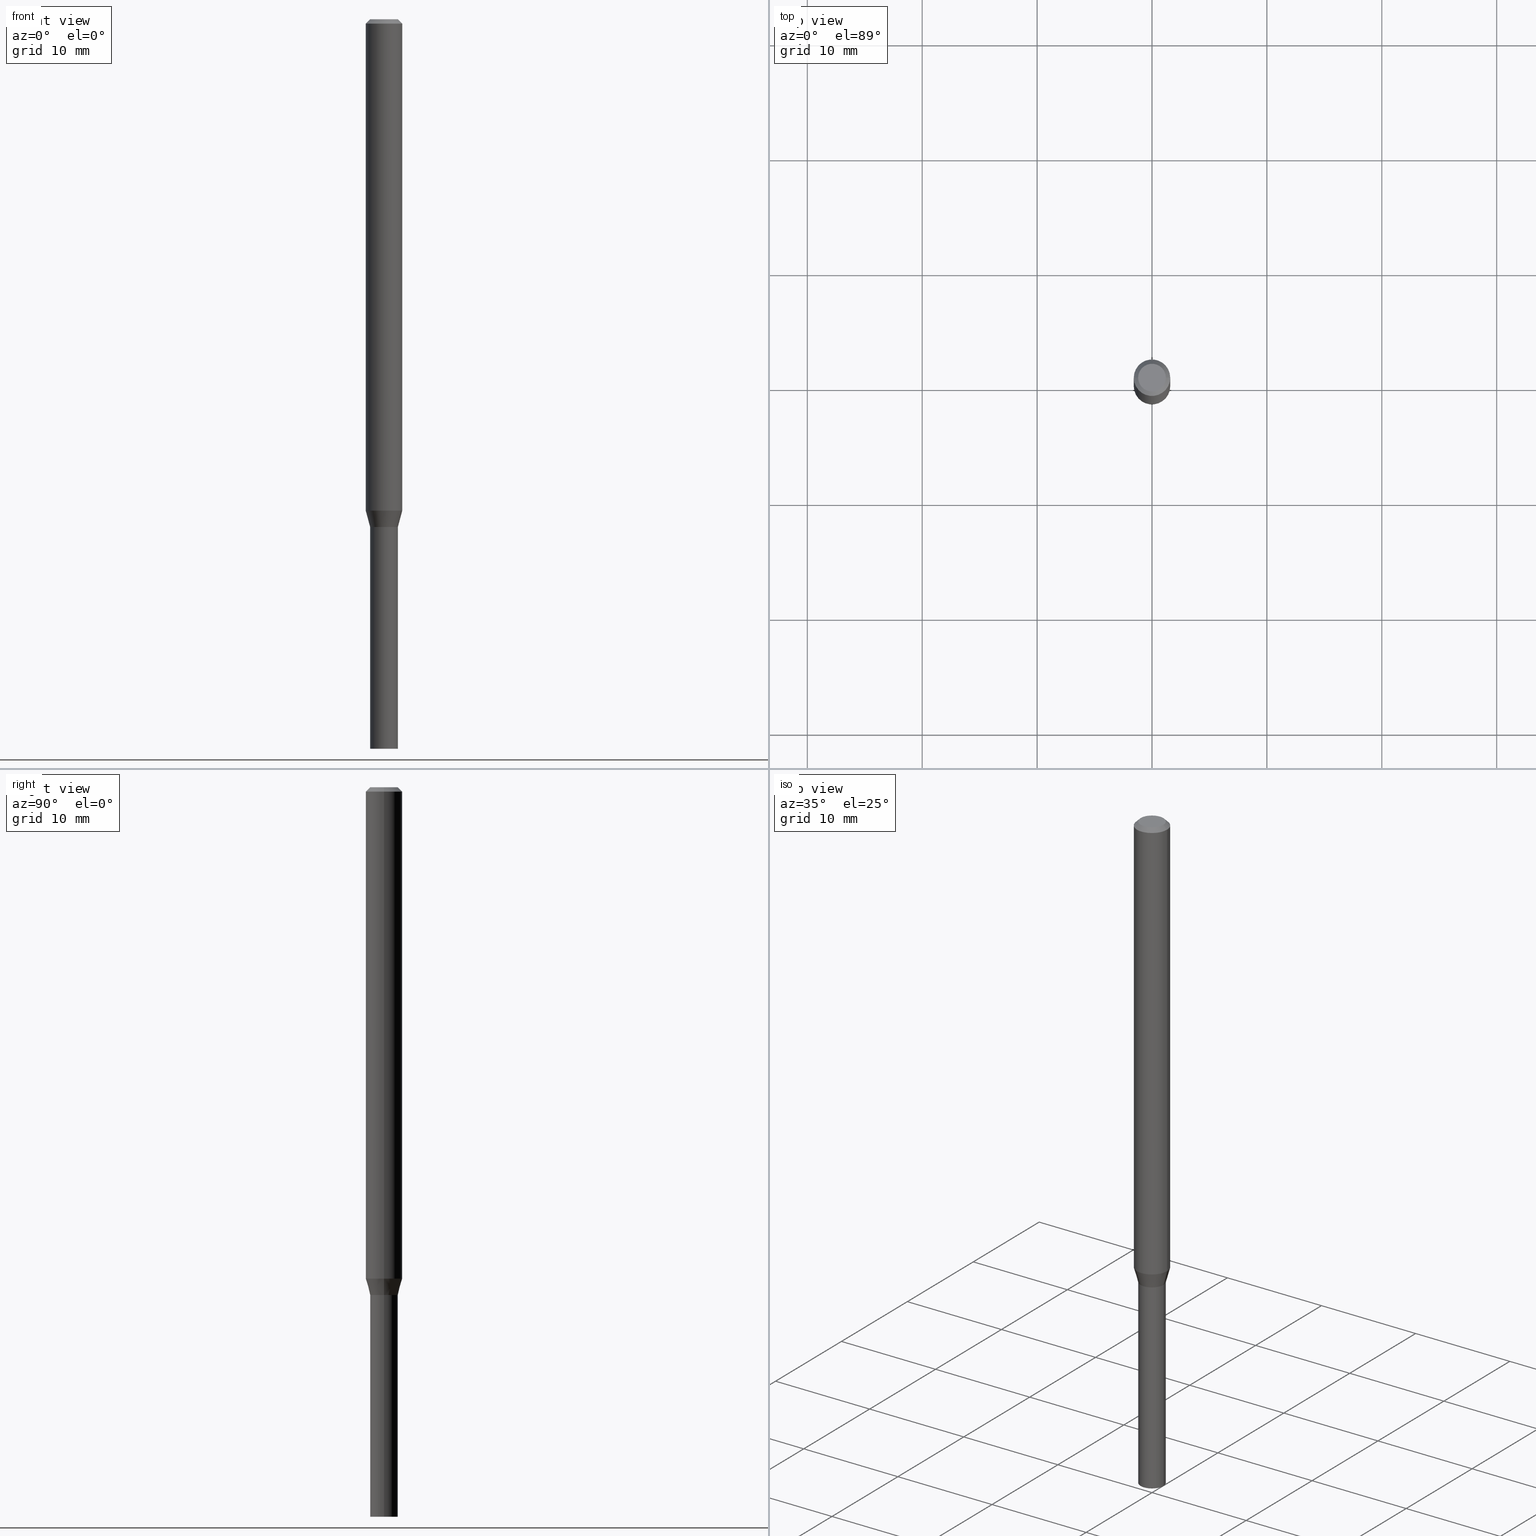
[diagram: canonical four-view strip — front | top / right | iso, engineering-drawing reading convention]
A machine part, canonical four-view strip (front | top / right | iso — engineering-drawing reading convention). The complete STEP part file that produces these views, byte-faithful:
ISO-10303-21;
HEADER;
FILE_DESCRIPTION (( 'STEP AP203' ),
    '1' );
FILE_NAME ('01277.STEP',
    '2024-03-20T00:54:45',
    ( '' ),
    ( '' ),
    'SwSTEP 2.0',
    'SolidWorks 2023',
    '' );
FILE_SCHEMA (( 'CONFIG_CONTROL_DESIGN' ));
ENDSEC;

DATA;
#1 = CARTESIAN_POINT ( 'NONE',  ( 0.04749999999999999362, -4.035134999187577637E-16, 5.611396763916933883E-17 ) ) ;
#2 = EDGE_LOOP ( 'NONE', ( #437, #202 ) ) ;
#3 = SHAPE_DEFINITION_REPRESENTATION ( #237, #136 ) ;
#4 = EDGE_CURVE ( 'NONE', #295, #342, #119, .T. ) ;
#5 = CARTESIAN_POINT ( 'NONE',  ( 0.000000000000000000, 0.000000000000000000, 0.000000000000000000 ) ) ;
#6 = ORIENTED_EDGE ( 'NONE', *, *, #35, .F. ) ;
#7 = CARTESIAN_POINT ( 'NONE',  ( 3.668203209277705088E-31, -5.237222008264718399E-17, -0.01499999999999999944 ) ) ;
#8 = ORIENTED_EDGE ( 'NONE', *, *, #217, .T. ) ;
#9 = CONICAL_SURFACE ( 'NONE', #87, 0.04699999999999999317, 0.7853981633974739252 ) ;
#10 = CARTESIAN_POINT ( 'NONE',  ( 4.253892988359045819E-29, -6.073431788917653096E-15, -1.739500000000000490 ) ) ;
#11 = PERSON ( 'UNSPECIFIED', 'UNSPECIFIED', 'UNSPECIFIED', ('UNSPECIFIED'), ('UNSPECIFIED'), ('UNSPECIFIED') ) ;
#12 = APPROVAL ( #216, 'UNSPECIFIED' ) ;
#13 = DIRECTION ( 'NONE',  ( 1.000000000000000000, -6.982962677686272233E-15, 0.000000000000000000 ) ) ;
#14 = EDGE_CURVE ( 'NONE', #300, #344, #377, .T. ) ;
#15 = ORIENTED_EDGE ( 'NONE', *, *, #217, .F. ) ;
#16 = DIRECTION ( 'NONE',  ( 1.000000000000000000, -6.982962677686272233E-15, 0.000000000000000000 ) ) ;
#17 = DIRECTION ( 'NONE',  ( 1.000000000000000000, -6.982962677686283277E-15, 0.000000000000000000 ) ) ;
#18 = EDGE_CURVE ( 'NONE', #434, #187, #204, .T. ) ;
#19 = ORIENTED_EDGE ( 'NONE', *, *, #91, .F. ) ;
#20 = ORIENTED_EDGE ( 'NONE', *, *, #443, .F. ) ;
#21 = CLOSED_SHELL ( 'NONE', ( #58, #461, #29, #305 ) ) ;
#22 = AXIS2_PLACEMENT_3D ( 'NONE', #92, #83, #264 ) ;
#23 = ORIENTED_EDGE ( 'NONE', *, *, #122, .F. ) ;
#24 = PRODUCT_RELATED_PRODUCT_CATEGORY ( 'detail', '', ( #197 ) ) ;
#25 = DIRECTION ( 'NONE',  ( 1.000000000000000000, -6.982962677686273021E-15, 0.000000000000000000 ) ) ;
#26 = CARTESIAN_POINT ( 'NONE',  ( 3.668203209277705088E-31, -5.237222008264718399E-17, -0.01499999999999999944 ) ) ;
#27 = DIRECTION ( 'NONE',  ( 1.000000000000000000, -6.982962677686267499E-15, 4.876176775795935793E-29 ) ) ;
#28 = AXIS2_PLACEMENT_3D ( 'NONE', #302, #73, #189 ) ;
#29 = ADVANCED_FACE ( 'NONE', ( #252 ), #211, .T. ) ;
#30 = CARTESIAN_POINT ( 'NONE',  ( -0.04749999999999964667, -5.737669730101027895E-15, -1.739999999999999991 ) ) ;
#31 = DATE_AND_TIME ( #134, #153 ) ;
#32 = FACE_OUTER_BOUND ( 'NONE', #124, .T. ) ;
#33 = APPROVAL_ROLE ( '' ) ;
#34 = DIRECTION ( 'NONE',  ( 2.445468806185136597E-29, -3.491481338843145583E-15, -1.000000000000000000 ) ) ;
#35 = EDGE_CURVE ( 'NONE', #187, #275, #455, .T. ) ;
#36 = EDGE_LOOP ( 'NONE', ( #78, #328, #48, #6 ) ) ;
#37 = VECTOR ( 'NONE', #117, 39.37007874015748143 ) ;
#38 = PERSON_AND_ORGANIZATION_ROLE ( 'creator' ) ;
#39 = DIRECTION ( 'NONE',  ( 1.000000000000000000, -6.982962677686273021E-15, 0.000000000000000000 ) ) ;
#40 = EDGE_LOOP ( 'NONE', ( #42, #181, #151, #155 ) ) ;
#41 = DIRECTION ( 'NONE',  ( -2.445468806185136877E-29, 3.491481338843145188E-15, 1.000000000000000000 ) ) ;
#42 = ORIENTED_EDGE ( 'NONE', *, *, #407, .F. ) ;
#43 = UNCERTAINTY_MEASURE_WITH_UNIT (LENGTH_MEASURE( 1.000000000000000082E-05 ), #231, 'distance_accuracy_value', 'NONE');
#44 = DIRECTION ( 'NONE',  ( 2.438088387897960049E-29, -3.491481338843145188E-15, -1.000000000000000000 ) ) ;
#45 = AXIS2_PLACEMENT_3D ( 'NONE', #376, #336, #120 ) ;
#46 = EDGE_CURVE ( 'NONE', #80, #112, #307, .T. ) ;
#47 = CARTESIAN_POINT ( 'NONE',  ( -0.04749999999999999362, -7.064432638861422672E-15, -2.500000000000000000 ) ) ;
#48 = ORIENTED_EDGE ( 'NONE', *, *, #270, .T. ) ;
#49 = DIRECTION ( 'NONE',  ( 1.000000000000000000, -6.982962677686272233E-15, 0.000000000000000000 ) ) ;
#50 = PRODUCT_DEFINITION_FORMATION_WITH_SPECIFIED_SOURCE ( 'ANY', '', #197, .NOT_KNOWN. ) ;
#51 = CC_DESIGN_DATE_AND_TIME_ASSIGNMENT ( #392, #167, ( #188 ) ) ;
#52 = ORIENTED_EDGE ( 'NONE', *, *, #311, .T. ) ;
#53 = DIRECTION ( 'NONE',  ( 1.000000000000000000, -6.982962677686262766E-15, 0.000000000000000000 ) ) ;
#54 = VERTEX_POINT ( 'NONE', #456 ) ;
#55 = EDGE_CURVE ( 'NONE', #342, #295, #94, .T. ) ;
#56 = FACE_OUTER_BOUND ( 'NONE', #142, .T. ) ;
#57 = AXIS2_PLACEMENT_3D ( 'NONE', #395, #221, #245 ) ;
#58 = ADVANCED_FACE ( 'NONE', ( #135 ), #96, .T. ) ;
#59 = LOCAL_TIME ( 20, 54, 45.00000000000000000, #460 ) ;
#60 = CARTESIAN_POINT ( 'NONE',  ( 6.113672015462842613E-29, -8.728703347107864943E-15, -2.500000000000000000 ) ) ;
#61 = CARTESIAN_POINT ( 'NONE',  ( 4.253892988359045819E-29, -6.073431788917653096E-15, -1.739500000000000490 ) ) ;
#62 = FACE_OUTER_BOUND ( 'NONE', #40, .T. ) ;
#63 = CARTESIAN_POINT ( 'NONE',  ( 0.000000000000000000, 0.000000000000000000, 0.000000000000000000 ) ) ;
#64 = DATE_AND_TIME ( #143, #88 ) ;
#65 = CARTESIAN_POINT ( 'NONE',  ( 3.668203209277705088E-31, -5.237222008264718399E-17, -0.01499999999999999944 ) ) ;
#66 = AXIS2_PLACEMENT_3D ( 'NONE', #405, #317, #195 ) ;
#67 = PERSON_AND_ORGANIZATION_ROLE ( 'classification_officer' ) ;
#68 = DIRECTION ( 'NONE',  ( -2.445468806185136877E-29, 3.491481338843145188E-15, 1.000000000000000000 ) ) ;
#69 = COORDINATED_UNIVERSAL_TIME_OFFSET ( 5, 0, .BEHIND. ) ;
#70 = DIRECTION ( 'NONE',  ( -2.438088387897960049E-29, 3.491481338843145188E-15, 1.000000000000000000 ) ) ;
#71 = ORIENTED_EDGE ( 'NONE', *, *, #156, .T. ) ;
#72 = APPROVAL_ROLE ( '' ) ;
#73 = DIRECTION ( 'NONE',  ( -2.445468806185136597E-29, 3.491481338843145583E-15, 1.000000000000000000 ) ) ;
#74 = AXIS2_PLACEMENT_3D ( 'NONE', #390, #276, #93 ) ;
#75 = LINE ( 'NONE', #433, #200 ) ;
#76 = ORIENTED_EDGE ( 'NONE', *, *, #4, .T. ) ;
#77 = FACE_OUTER_BOUND ( 'NONE', #2, .T. ) ;
#78 = ORIENTED_EDGE ( 'NONE', *, *, #163, .F. ) ;
#79 = DIRECTION ( 'NONE',  ( -2.445468806185136597E-29, 3.491481338843145583E-15, 1.000000000000000000 ) ) ;
#80 = VERTEX_POINT ( 'NONE', #282 ) ;
#81 = VECTOR ( 'NONE', #289, 39.37007874015748143 ) ;
#82 = ORIENTED_EDGE ( 'NONE', *, *, #284, .F. ) ;
#83 = DIRECTION ( 'NONE',  ( -2.445468806185136597E-29, 3.491481338843145583E-15, 1.000000000000000000 ) ) ;
#84 = ADVANCED_FACE ( 'NONE', ( #246 ), #131, .T. ) ;
#85 = ORIENTED_EDGE ( 'NONE', *, *, #18, .F. ) ;
#86 = ORIENTED_EDGE ( 'NONE', *, *, #55, .F. ) ;
#87 = AXIS2_PLACEMENT_3D ( 'NONE', #414, #420, #13 ) ;
#88 = LOCAL_TIME ( 20, 54, 45.00000000000000000, #429 ) ;
#89 = ORIENTED_EDGE ( 'NONE', *, *, #297, .F. ) ;
#90 = ORIENTED_EDGE ( 'NONE', *, *, #55, .T. ) ;
#91 = EDGE_CURVE ( 'NONE', #310, #54, #278, .T. ) ;
#92 = CARTESIAN_POINT ( 'NONE',  ( 4.255115722762138060E-29, -6.075177529587073811E-15, -1.739999999999999991 ) ) ;
#93 = DIRECTION ( 'NONE',  ( 1.000000000000000000, -6.982962677686266711E-15, 4.876176775795935793E-29 ) ) ;
#94 = CIRCLE ( 'NONE', #427, 0.04749999999999999362 ) ;
#95 = CIRCLE ( 'NONE', #28, 0.04749999999999999362 ) ;
#96 = CYLINDRICAL_SURFACE ( 'NONE', #338, 0.04749999999999999362 ) ;
#97 = CARTESIAN_POINT ( 'NONE',  ( 0.000000000000000000, 0.000000000000000000, 0.000000000000000000 ) ) ;
#98 = ADVANCED_FACE ( 'NONE', ( #32 ), #152, .T. ) ;
#99 = DIRECTION ( 'NONE',  ( -2.445468806185136597E-29, 3.491481338843145583E-15, 1.000000000000000000 ) ) ;
#100 = APPROVAL_STATUS ( 'not_yet_approved' ) ;
#101 = DIRECTION ( 'NONE',  ( -0.7071067811865656694, 7.493145998870420424E-15, 0.7071067811865294761 ) ) ;
#102 = PERSON_AND_ORGANIZATION_ROLE ( 'design_owner' ) ;
#103 = CYLINDRICAL_SURFACE ( 'NONE', #74, 0.06250000000000000000 ) ;
#104 = CONICAL_SURFACE ( 'NONE', #428, 0.06250000000000000000, 0.7853981633974465026 ) ;
#105 = DATE_AND_TIME ( #283, #380 ) ;
#106 = PLANE ( 'NONE',  #465 ) ;
#107 = APPROVAL ( #172, 'UNSPECIFIED' ) ;
#108 = APPROVAL_ROLE ( '' ) ;
#109 = CARTESIAN_POINT ( 'NONE',  ( 3.668203209277705088E-31, -5.237222008264718399E-17, -0.01499999999999999944 ) ) ;
#110 = MECHANICAL_CONTEXT ( 'NONE', #128, 'mechanical' ) ;
#111 = LINE ( 'NONE', #364, #257 ) ;
#112 = VERTEX_POINT ( 'NONE', #170 ) ;
#113 = VECTOR ( 'NONE', #41, 39.37007874015748143 ) ;
#114 = CARTESIAN_POINT ( 'NONE',  ( -0.04749999999999999362, 3.375077994860475429E-16, -2.336494167871079910E-30 ) ) ;
#115 = CARTESIAN_POINT ( 'NONE',  ( 0.04699999999999999317, -6.403376775438328315E-15, -1.739999999999999991 ) ) ;
#116 = EDGE_LOOP ( 'NONE', ( #52, #337 ) ) ;
#117 = DIRECTION ( 'NONE',  ( -2.445468806185136877E-29, 3.491481338843145188E-15, 1.000000000000000000 ) ) ;
#118 = ORIENTED_EDGE ( 'NONE', *, *, #185, .F. ) ;
#119 = CIRCLE ( 'NONE', #190, 0.04749999999999999362 ) ;
#120 = DIRECTION ( 'NONE',  ( 1.000000000000000000, -6.982962677686273021E-15, 0.000000000000000000 ) ) ;
#121 = VERTEX_POINT ( 'NONE', #218 ) ;
#122 = EDGE_CURVE ( 'NONE', #54, #196, #386, .T. ) ;
#123 = DIRECTION ( 'NONE',  ( 1.000000000000000000, -6.982962677686265922E-15, 4.876176775795935793E-29 ) ) ;
#124 = EDGE_LOOP ( 'NONE', ( #396, #365, #191, #15 ) ) ;
#125 = ORIENTED_EDGE ( 'NONE', *, *, #203, .F. ) ;
#126 = AXIS2_PLACEMENT_3D ( 'NONE', #351, #99, #244 ) ;
#127 = EDGE_LOOP ( 'NONE', ( #222, #449, #410, #314 ) ) ;
#128 = APPLICATION_CONTEXT ( 'configuration controlled 3d designs of mechanical parts and assemblies' ) ;
#129 =( NAMED_UNIT ( * ) SI_UNIT ( $, .STERADIAN. ) SOLID_ANGLE_UNIT ( ) );
#130 = CARTESIAN_POINT ( 'NONE',  ( 0.04699999999999999317, -6.403376775438328315E-15, -1.739999999999999991 ) ) ;
#131 = CONICAL_SURFACE ( 'NONE', #265, 0.06250000000000000000, 0.7853981633974465026 ) ;
#132 = VECTOR ( 'NONE', #68, 39.37007874015748143 ) ;
#133 = DIRECTION ( 'NONE',  ( 1.000000000000000000, -6.982962677686266711E-15, 0.000000000000000000 ) ) ;
#134 = CALENDAR_DATE ( 2024, 19, 3 ) ;
#135 = FACE_OUTER_BOUND ( 'NONE', #160, .T. ) ;
#136 = ADVANCED_BREP_SHAPE_REPRESENTATION ( '01277', ( #286, #432, #214 ), #279 ) ;
#137 = DIRECTION ( 'NONE',  ( -2.445468806185136597E-29, 3.491481338843145583E-15, 1.000000000000000000 ) ) ;
#138 = COORDINATED_UNIVERSAL_TIME_OFFSET ( 5, 0, .BEHIND. ) ;
#139 = VECTOR ( 'NONE', #292, 39.37007874015748143 ) ;
#140 = CARTESIAN_POINT ( 'NONE',  ( 0.000000000000000000, 0.000000000000000000, 0.000000000000000000 ) ) ;
#141 = FACE_OUTER_BOUND ( 'NONE', #116, .T. ) ;
#142 = EDGE_LOOP ( 'NONE', ( #255, #313, #409, #125 ) ) ;
#143 = CALENDAR_DATE ( 2024, 19, 3 ) ;
#144 = CARTESIAN_POINT ( 'NONE',  ( 0.06250000000000000000, -4.364351673553916694E-16, 3.047610484872459871E-30 ) ) ;
#145 = DIRECTION ( 'NONE',  ( -2.445468806185136597E-29, 3.491481338843145583E-15, 1.000000000000000000 ) ) ;
#146 = AXIS2_PLACEMENT_3D ( 'NONE', #384, #209, #49 ) ;
#147 = DIRECTION ( 'NONE',  ( 1.000000000000000000, -6.982962677686267499E-15, 4.876176775795935793E-29 ) ) ;
#148 = APPLICATION_CONTEXT ( 'configuration controlled 3d designs of mechanical parts and assemblies' ) ;
#149 = DIRECTION ( 'NONE',  ( 1.000000000000000000, -6.982962677686267499E-15, 4.876176775795935793E-29 ) ) ;
#150 = LINE ( 'NONE', #306, #333 ) ;
#151 = ORIENTED_EDGE ( 'NONE', *, *, #332, .T. ) ;
#152 = CONICAL_SURFACE ( 'NONE', #126, 0.04749999999999964667, 0.2617993877991492968 ) ;
#153 = LOCAL_TIME ( 20, 54, 45.00000000000000000, #69 ) ;
#154 = ORIENTED_EDGE ( 'NONE', *, *, #4, .F. ) ;
#155 = ORIENTED_EDGE ( 'NONE', *, *, #156, .F. ) ;
#156 = EDGE_CURVE ( 'NONE', #259, #121, #348, .T. ) ;
#157 = ORIENTED_EDGE ( 'NONE', *, *, #442, .F. ) ;
#158 = AXIS2_PLACEMENT_3D ( 'NONE', #439, #326, #39 ) ;
#159 = AXIS2_PLACEMENT_3D ( 'NONE', #423, #137, #415 ) ;
#160 = EDGE_LOOP ( 'NONE', ( #76, #271, #220, #157 ) ) ;
#161 =( NAMED_UNIT ( * ) PLANE_ANGLE_UNIT ( ) SI_UNIT ( $, .RADIAN. ) );
#162 = CARTESIAN_POINT ( 'NONE',  ( -0.04749999999999964667, -5.735923989431608758E-15, -1.739500000000000490 ) ) ;
#163 = EDGE_CURVE ( 'NONE', #344, #187, #248, .T. ) ;
#164 = CARTESIAN_POINT ( 'NONE',  ( 0.000000000000000000, 0.000000000000000000, 0.000000000000000000 ) ) ;
#165 = FACE_OUTER_BOUND ( 'NONE', #127, .T. ) ;
#166 = CC_DESIGN_PERSON_AND_ORGANIZATION_ASSIGNMENT ( #256, #247, ( #50 ) ) ;
#167 = DATE_TIME_ROLE ( 'creation_date' ) ;
#168 = CLOSED_SHELL ( 'NONE', ( #419, #417, #84, #174, #98, #385, #234, #369, #374, #360, #393, #253 ) ) ;
#169 = AXIS2_PLACEMENT_3D ( 'NONE', #5, #358, #183 ) ;
#170 = CARTESIAN_POINT ( 'NONE',  ( -0.04749999999999999362, -7.064432638861422672E-15, -1.740000000000000213 ) ) ;
#171 = DIRECTION ( 'NONE',  ( -0.7071067811865462405, 2.468850131082243256E-15, -0.7071067811865487940 ) ) ;
#172 = APPROVAL_STATUS ( 'not_yet_approved' ) ;
#173 = EDGE_CURVE ( 'NONE', #406, #344, #215, .T. ) ;
#174 = ADVANCED_FACE ( 'NONE', ( #165 ), #103, .T. ) ;
#175 = CARTESIAN_POINT ( 'NONE',  ( -0.04699999999999999317, -5.741222443779827216E-15, -1.739999999999999991 ) ) ;
#176 = DATE_AND_TIME ( #352, #466 ) ;
#177 = VECTOR ( 'NONE', #171, 39.37007874015748143 ) ;
#178 = AXIS2_PLACEMENT_3D ( 'NONE', #140, #359, #147 ) ;
#179 = DIRECTION ( 'NONE',  ( -1.000000000000000000, 6.982962677686266711E-15, 0.000000000000000000 ) ) ;
#180 = ORGANIZATION ( 'UNSPECIFIED', 'UNSPECIFIED', '' ) ;
#181 = ORIENTED_EDGE ( 'NONE', *, *, #443, .T. ) ;
#182 = PERSON_AND_ORGANIZATION ( #11, #180 ) ;
#183 = DIRECTION ( 'NONE',  ( 1.000000000000000000, -6.982962677686266711E-15, 4.876176775795935793E-29 ) ) ;
#184 = EDGE_LOOP ( 'NONE', ( #375, #402, #233, #230 ) ) ;
#185 = EDGE_CURVE ( 'NONE', #372, #434, #192, .T. ) ;
#186 = LINE ( 'NONE', #114, #139 ) ;
#187 = VERTEX_POINT ( 'NONE', #347 ) ;
#188 = PRODUCT_DEFINITION ( 'UNKNOWN', '', #50, #288 ) ;
#189 = DIRECTION ( 'NONE',  ( 1.000000000000000000, -6.982962677686261977E-15, 0.000000000000000000 ) ) ;
#190 = AXIS2_PLACEMENT_3D ( 'NONE', #232, #199, #17 ) ;
#191 = ORIENTED_EDGE ( 'NONE', *, *, #14, .F. ) ;
#192 = CIRCLE ( 'NONE', #213, 0.04749999999999999362 ) ;
#193 = CARTESIAN_POINT ( 'NONE',  ( -0.06250000000000000000, -5.435632533483387962E-15, -1.684019237886465570 ) ) ;
#194 = EDGE_CURVE ( 'NONE', #121, #196, #379, .T. ) ;
#195 = DIRECTION ( 'NONE',  ( 1.000000000000000000, -6.982962677686262766E-15, 0.000000000000000000 ) ) ;
#196 = VERTEX_POINT ( 'NONE', #162 ) ;
#197 = PRODUCT ( '01277', '01277', '', ( #110 ) ) ;
#198 = PLANE ( 'NONE',  #315 ) ;
#199 = DIRECTION ( 'NONE',  ( -2.445468806185136597E-29, 3.491481338843145583E-15, 1.000000000000000000 ) ) ;
#200 = VECTOR ( 'NONE', #399, 39.37007874015748854 ) ;
#201 = APPROVAL_PERSON_ORGANIZATION ( #287, #107, #72 ) ;
#202 = ORIENTED_EDGE ( 'NONE', *, *, #297, .T. ) ;
#203 = EDGE_CURVE ( 'NONE', #310, #121, #453, .T. ) ;
#204 = LINE ( 'NONE', #343, #177 ) ;
#205 = ORIENTED_EDGE ( 'NONE', *, *, #382, .F. ) ;
#206 = AXIS2_PLACEMENT_3D ( 'NONE', #329, #334, #436 ) ;
#207 = CARTESIAN_POINT ( 'NONE',  ( -0.04749999999999964667, -5.586651131792208323E-15, -1.739999999999999991 ) ) ;
#208 = DIRECTION ( 'NONE',  ( -2.445468806185136597E-29, 3.491481338843145583E-15, 1.000000000000000000 ) ) ;
#209 = DIRECTION ( 'NONE',  ( -2.445468806185136597E-29, 3.491481338843145583E-15, 1.000000000000000000 ) ) ;
#210 = CC_DESIGN_PERSON_AND_ORGANIZATION_ASSIGNMENT ( #424, #38, ( #188 ) ) ;
#211 = CYLINDRICAL_SURFACE ( 'NONE', #241, 0.04749999999999999362 ) ;
#212 = DIRECTION ( 'NONE',  ( -1.000000000000000000, 6.982962677686266711E-15, 0.000000000000000000 ) ) ;
#213 = AXIS2_PLACEMENT_3D ( 'NONE', #240, #208, #383 ) ;
#214 = AXIS2_PLACEMENT_3D ( 'NONE', #164, #319, #249 ) ;
#215 = LINE ( 'NONE', #30, #309 ) ;
#216 = APPROVAL_STATUS ( 'not_yet_approved' ) ;
#217 = EDGE_CURVE ( 'NONE', #259, #300, #75, .T. ) ;
#218 = CARTESIAN_POINT ( 'NONE',  ( 0.04749999999999964667, -6.405122516107749029E-15, -1.739500000000000490 ) ) ;
#219 = DIRECTION ( 'NONE',  ( 1.000000000000000000, -6.982962677686265922E-15, 4.876176775795935793E-29 ) ) ;
#220 = ORIENTED_EDGE ( 'NONE', *, *, #46, .F. ) ;
#221 = DIRECTION ( 'NONE',  ( 2.438088387897960049E-29, -3.491481338843145188E-15, -1.000000000000000000 ) ) ;
#222 = ORIENTED_EDGE ( 'NONE', *, *, #14, .T. ) ;
#223 = EDGE_CURVE ( 'NONE', #372, #275, #111, .T. ) ;
#224 = DIRECTION ( 'NONE',  ( 0.7071067811865462405, -7.319954787623251312E-15, -0.7071067811865487940 ) ) ;
#225 = PLANE ( 'NONE',  #404 ) ;
#226 = DIRECTION ( 'NONE',  ( 1.000000000000000000, -6.982962677686273021E-15, 0.000000000000000000 ) ) ;
#227 = CIRCLE ( 'NONE', #22, 0.04749999999999964667 ) ;
#228 = ORIENTED_EDGE ( 'NONE', *, *, #293, .T. ) ;
#229 = FACE_OUTER_BOUND ( 'NONE', #445, .T. ) ;
#230 = ORIENTED_EDGE ( 'NONE', *, *, #35, .T. ) ;
#231 =( CONVERSION_BASED_UNIT ( 'INCH', #346 ) LENGTH_UNIT ( ) NAMED_UNIT ( #263 ) );
#232 = CARTESIAN_POINT ( 'NONE',  ( 6.113672015462842613E-29, -8.728703347107864943E-15, -2.500000000000000000 ) ) ;
#233 = ORIENTED_EDGE ( 'NONE', *, *, #18, .T. ) ;
#234 = ADVANCED_FACE ( 'NONE', ( #330 ), #299, .T. ) ;
#235 = CIRCLE ( 'NONE', #301, 0.04699999999999999317 ) ;
#236 = ORIENTED_EDGE ( 'NONE', *, *, #173, .F. ) ;
#237 = PRODUCT_DEFINITION_SHAPE ( 'NONE', 'NONE',  #188 ) ;
#238 = ORIENTED_EDGE ( 'NONE', *, *, #442, .T. ) ;
#239 = LINE ( 'NONE', #452, #37 ) ;
#240 = CARTESIAN_POINT ( 'NONE',  ( -1.372249574528645272E-45, 1.959208708605989116E-31, 5.611396763916676271E-17 ) ) ;
#241 = AXIS2_PLACEMENT_3D ( 'NONE', #323, #353, #27 ) ;
#242 = AXIS2_PLACEMENT_3D ( 'NONE', #7, #145, #430 ) ;
#243 = FACE_OUTER_BOUND ( 'NONE', #370, .T. ) ;
#244 = DIRECTION ( 'NONE',  ( 1.000000000000000000, -6.982962677686273021E-15, 0.000000000000000000 ) ) ;
#245 = DIRECTION ( 'NONE',  ( -1.000000000000000000, 6.982962677686265922E-15, -4.876176775795935793E-29 ) ) ;
#246 = FACE_OUTER_BOUND ( 'NONE', #268, .T. ) ;
#247 = PERSON_AND_ORGANIZATION_ROLE ( 'design_supplier' ) ;
#248 = LINE ( 'NONE', #388, #132 ) ;
#249 = DIRECTION ( 'NONE',  ( 1.000000000000000000, 0.000000000000000000, 0.000000000000000000 ) ) ;
#250 = AXIS2_PLACEMENT_3D ( 'NONE', #378, #277, #322 ) ;
#251 = CIRCLE ( 'NONE', #242, 0.06250000000000000000 ) ;
#252 = FACE_OUTER_BOUND ( 'NONE', #316, .T. ) ;
#253 = ADVANCED_FACE ( 'NONE', ( #261 ), #361, .F. ) ;
#254 = PLANE ( 'NONE',  #57 ) ;
#255 = ORIENTED_EDGE ( 'NONE', *, *, #91, .T. ) ;
#256 = PERSON_AND_ORGANIZATION ( #11, #180 ) ;
#257 = VECTOR ( 'NONE', #224, 39.37007874015748143 ) ;
#258 = CARTESIAN_POINT ( 'NONE',  ( 0.04749999999999964667, -6.406868256777168955E-15, -1.739999999999999991 ) ) ;
#259 = VERTEX_POINT ( 'NONE', #258 ) ;
#260 = CARTESIAN_POINT ( 'NONE',  ( 0.06250000000000000000, -6.316156910688842248E-15, -1.684019237886465570 ) ) ;
#261 = FACE_OUTER_BOUND ( 'NONE', #367, .T. ) ;
#262 = EDGE_CURVE ( 'NONE', #259, #406, #345, .T. ) ;
#263 = DIMENSIONAL_EXPONENTS ( 1.000000000000000000, 0.000000000000000000, 0.000000000000000000, 0.000000000000000000, 0.000000000000000000, 0.000000000000000000, 0.000000000000000000 ) ;
#264 = DIRECTION ( 'NONE',  ( 1.000000000000000000, -6.982962677686273021E-15, 0.000000000000000000 ) ) ;
#265 = AXIS2_PLACEMENT_3D ( 'NONE', #65, #350, #212 ) ;
#266 = EDGE_LOOP ( 'NONE', ( #236, #400, #8, #373 ) ) ;
#267 = DIRECTION ( 'NONE',  ( -2.445468806185136597E-29, 3.491481338843145583E-15, 1.000000000000000000 ) ) ;
#268 = EDGE_LOOP ( 'NONE', ( #118, #446, #228, #85 ) ) ;
#269 = FACE_OUTER_BOUND ( 'NONE', #266, .T. ) ;
#270 = EDGE_CURVE ( 'NONE', #300, #275, #440, .T. ) ;
#271 = ORIENTED_EDGE ( 'NONE', *, *, #284, .T. ) ;
#272 = CARTESIAN_POINT ( 'NONE',  ( 4.118216515267018389E-29, -5.879721743333449789E-15, -1.684019237886465570 ) ) ;
#273 = CIRCLE ( 'NONE', #340, 0.04749999999999964667 ) ;
#274 = CC_DESIGN_SECURITY_CLASSIFICATION ( #303, ( #50 ) ) ;
#275 = VERTEX_POINT ( 'NONE', #304 ) ;
#276 = DIRECTION ( 'NONE',  ( -2.445468806185136597E-29, 3.491481338843145583E-15, 1.000000000000000000 ) ) ;
#277 = DIRECTION ( 'NONE',  ( -2.445468806185136597E-29, 3.491481338843145583E-15, 1.000000000000000000 ) ) ;
#278 = CIRCLE ( 'NONE', #159, 0.04699999999999999317 ) ;
#279 =( GEOMETRIC_REPRESENTATION_CONTEXT ( 3 ) GLOBAL_UNCERTAINTY_ASSIGNED_CONTEXT ( ( #43 ) ) GLOBAL_UNIT_ASSIGNED_CONTEXT ( ( #231, #161, #129 ) ) REPRESENTATION_CONTEXT ( 'NONE', 'WORKASPACE' ) );
#280 = DIRECTION ( 'NONE',  ( -2.445468806185136597E-29, 3.491481338843145583E-15, 1.000000000000000000 ) ) ;
#281 = CC_DESIGN_APPROVAL ( #355, ( #50 ) ) ;
#282 = CARTESIAN_POINT ( 'NONE',  ( 0.04749999999999999362, -6.406868256777172111E-15, -1.740000000000000213 ) ) ;
#283 = CALENDAR_DATE ( 2024, 19, 3 ) ;
#284 = EDGE_CURVE ( 'NONE', #342, #112, #186, .T. ) ;
#285 = DIRECTION ( 'NONE',  ( 1.000000000000000000, -6.982962677686267499E-15, 4.876176775795935793E-29 ) ) ;
#286 = MANIFOLD_SOLID_BREP ( 'Body-Move/Copy2[1]', #21 ) ;
#287 = PERSON_AND_ORGANIZATION ( #11, #180 ) ;
#288 = DESIGN_CONTEXT ( 'detailed design', #148, 'design' ) ;
#289 = DIRECTION ( 'NONE',  ( -2.445468806185136877E-29, 3.491481338843145188E-15, 1.000000000000000000 ) ) ;
#290 = PERSON_AND_ORGANIZATION ( #11, #180 ) ;
#291 = CONICAL_SURFACE ( 'NONE', #146, 0.04699999999999999317, 0.7853981633974739252 ) ;
#292 = DIRECTION ( 'NONE',  ( -2.445468806185136877E-29, 3.491481338843145188E-15, 1.000000000000000000 ) ) ;
#293 = EDGE_CURVE ( 'NONE', #275, #187, #251, .T. ) ;
#294 = DIRECTION ( 'NONE',  ( -1.000000000000000000, 6.982962677686265922E-15, -4.876176775795935793E-29 ) ) ;
#295 = VERTEX_POINT ( 'NONE', #401 ) ;
#296 = CC_DESIGN_PERSON_AND_ORGANIZATION_ASSIGNMENT ( #435, #102, ( #197 ) ) ;
#297 = EDGE_CURVE ( 'NONE', #112, #80, #95, .T. ) ;
#298 = COORDINATED_UNIVERSAL_TIME_OFFSET ( 5, 0, .BEHIND. ) ;
#299 = CYLINDRICAL_SURFACE ( 'NONE', #169, 0.06250000000000000000 ) ;
#300 = VERTEX_POINT ( 'NONE', #260 ) ;
#301 = AXIS2_PLACEMENT_3D ( 'NONE', #308, #280, #16 ) ;
#302 = CARTESIAN_POINT ( 'NONE',  ( 4.255115722762138620E-29, -6.075177529587074600E-15, -1.740000000000000213 ) ) ;
#303 = SECURITY_CLASSIFICATION ( '', '', #431 ) ;
#304 = CARTESIAN_POINT ( 'NONE',  ( 0.06250000000000000000, -4.888073874380388472E-16, -0.01499999999999999944 ) ) ;
#305 = ADVANCED_FACE ( 'NONE', ( #77 ), #225, .F. ) ;
#306 = CARTESIAN_POINT ( 'NONE',  ( 0.04749999999999999362, -3.316907271900976589E-16, 2.316183968503069081E-30 ) ) ;
#307 = CIRCLE ( 'NONE', #250, 0.04749999999999999362 ) ;
#308 = CARTESIAN_POINT ( 'NONE',  ( 4.255115722762138060E-29, -6.075177529587073811E-15, -1.739999999999999991 ) ) ;
#309 = VECTOR ( 'NONE', #426, 39.37007874015748854 ) ;
#310 = VERTEX_POINT ( 'NONE', #115 ) ;
#311 = EDGE_CURVE ( 'NONE', #434, #372, #371, .T. ) ;
#312 = ORIENTED_EDGE ( 'NONE', *, *, #194, .T. ) ;
#313 = ORIENTED_EDGE ( 'NONE', *, *, #122, .T. ) ;
#314 = ORIENTED_EDGE ( 'NONE', *, *, #270, .F. ) ;
#315 = AXIS2_PLACEMENT_3D ( 'NONE', #408, #339, #123 ) ;
#316 = EDGE_LOOP ( 'NONE', ( #82, #90, #238, #89 ) ) ;
#317 = DIRECTION ( 'NONE',  ( -2.445468806185136597E-29, 3.491481338843145583E-15, 1.000000000000000000 ) ) ;
#318 = DIRECTION ( 'NONE',  ( -2.445468806185136597E-29, 3.491481338843145583E-15, 1.000000000000000000 ) ) ;
#319 = DIRECTION ( 'NONE',  ( 0.000000000000000000, 0.000000000000000000, 1.000000000000000000 ) ) ;
#320 = DIRECTION ( 'NONE',  ( 0.7071067811865656694, -2.468850131082446387E-15, 0.7071067811865294761 ) ) ;
#321 = APPROVAL_PERSON_ORGANIZATION ( #290, #355, #108 ) ;
#322 = DIRECTION ( 'NONE',  ( 1.000000000000000000, -6.982962677686261977E-15, 0.000000000000000000 ) ) ;
#323 = CARTESIAN_POINT ( 'NONE',  ( 0.000000000000000000, 0.000000000000000000, 0.000000000000000000 ) ) ;
#324 = APPROVAL_DATE_TIME ( #105, #12 ) ;
#325 = CARTESIAN_POINT ( 'NONE',  ( 0.04749999999999964667, -3.316907271900952430E-16, 2.316183968503052266E-30 ) ) ;
#326 = DIRECTION ( 'NONE',  ( -2.445468806185136597E-29, 3.491481338843145583E-15, 1.000000000000000000 ) ) ;
#327 = CC_DESIGN_PERSON_AND_ORGANIZATION_ASSIGNMENT ( #389, #422, ( #50 ) ) ;
#328 = ORIENTED_EDGE ( 'NONE', *, *, #425, .T. ) ;
#329 = CARTESIAN_POINT ( 'NONE',  ( -1.372249574528645272E-45, 1.959208708605989116E-31, 5.611396763916676271E-17 ) ) ;
#330 = FACE_OUTER_BOUND ( 'NONE', #36, .T. ) ;
#331 = EDGE_LOOP ( 'NONE', ( #19, #205 ) ) ;
#332 = EDGE_CURVE ( 'NONE', #196, #121, #273, .T. ) ;
#333 = VECTOR ( 'NONE', #441, 39.37007874015748143 ) ;
#334 = DIRECTION ( 'NONE',  ( -2.445468806185136597E-29, 3.491481338843145583E-15, 1.000000000000000000 ) ) ;
#335 = CC_DESIGN_APPROVAL ( #107, ( #303 ) ) ;
#336 = DIRECTION ( 'NONE',  ( -2.445468806185136597E-29, 3.491481338843145583E-15, 1.000000000000000000 ) ) ;
#337 = ORIENTED_EDGE ( 'NONE', *, *, #185, .T. ) ;
#338 = AXIS2_PLACEMENT_3D ( 'NONE', #63, #462, #285 ) ;
#339 = DIRECTION ( 'NONE',  ( -2.438088387897960049E-29, 3.491481338843145188E-15, 1.000000000000000000 ) ) ;
#340 = AXIS2_PLACEMENT_3D ( 'NONE', #10, #79, #226 ) ;
#341 = ORIENTED_EDGE ( 'NONE', *, *, #332, .F. ) ;
#342 = VERTEX_POINT ( 'NONE', #47 ) ;
#343 = CARTESIAN_POINT ( 'NONE',  ( -0.06250000000000000000, 3.840629472727444916E-16, -0.01499999999999999944 ) ) ;
#344 = VERTEX_POINT ( 'NONE', #193 ) ;
#345 = CIRCLE ( 'NONE', #158, 0.04749999999999964667 ) ;
#346 = LENGTH_MEASURE_WITH_UNIT ( LENGTH_MEASURE( 0.02539999999999999897 ), #366 );
#347 = CARTESIAN_POINT ( 'NONE',  ( -0.06250000000000000000, -2.521957771857986410E-15, -0.01499999999999999944 ) ) ;
#348 = LINE ( 'NONE', #325, #81 ) ;
#349 = APPROVAL_DATE_TIME ( #64, #107 ) ;
#350 = DIRECTION ( 'NONE',  ( 2.445468806185136597E-29, -3.491481338843145583E-15, -1.000000000000000000 ) ) ;
#351 = CARTESIAN_POINT ( 'NONE',  ( 4.255115722762138060E-29, -6.075177529587073811E-15, -1.739999999999999991 ) ) ;
#352 = CALENDAR_DATE ( 2024, 19, 3 ) ;
#353 = DIRECTION ( 'NONE',  ( -2.445468806185136597E-29, 3.491481338843145583E-15, 1.000000000000000000 ) ) ;
#354 = APPROVAL_DATE_TIME ( #31, #355 ) ;
#355 = APPROVAL ( #100, 'UNSPECIFIED' ) ;
#356 = FACE_OUTER_BOUND ( 'NONE', #184, .T. ) ;
#357 = CONICAL_SURFACE ( 'NONE', #45, 0.04749999999999964667, 0.2617993877991492968 ) ;
#358 = DIRECTION ( 'NONE',  ( -2.445468806185136597E-29, 3.491481338843145583E-15, 1.000000000000000000 ) ) ;
#359 = DIRECTION ( 'NONE',  ( -2.445468806185136597E-29, 3.491481338843145583E-15, 1.000000000000000000 ) ) ;
#360 = ADVANCED_FACE ( 'NONE', ( #464 ), #106, .F. ) ;
#361 = CYLINDRICAL_SURFACE ( 'NONE', #178, 0.04749999999999964667 ) ;
#362 = AXIS2_PLACEMENT_3D ( 'NONE', #61, #318, #25 ) ;
#363 = AXIS2_PLACEMENT_3D ( 'NONE', #97, #267, #149 ) ;
#364 = CARTESIAN_POINT ( 'NONE',  ( 0.06250000000000000000, -4.811533449433679005E-16, -0.01499999999999999944 ) ) ;
#365 = ORIENTED_EDGE ( 'NONE', *, *, #173, .T. ) ;
#366 =( LENGTH_UNIT ( ) NAMED_UNIT ( * ) SI_UNIT ( $, .METRE. ) );
#367 = EDGE_LOOP ( 'NONE', ( #20, #451, #71, #312 ) ) ;
#368 = CC_DESIGN_PERSON_AND_ORGANIZATION_ASSIGNMENT ( #463, #67, ( #303 ) ) ;
#369 = ADVANCED_FACE ( 'NONE', ( #356 ), #104, .T. ) ;
#370 = EDGE_LOOP ( 'NONE', ( #23, #413, #447, #341 ) ) ;
#371 = CIRCLE ( 'NONE', #206, 0.04749999999999999362 ) ;
#372 = VERTEX_POINT ( 'NONE', #1 ) ;
#373 = ORIENTED_EDGE ( 'NONE', *, *, #425, .F. ) ;
#374 = ADVANCED_FACE ( 'NONE', ( #141 ), #254, .F. ) ;
#375 = ORIENTED_EDGE ( 'NONE', *, *, #223, .F. ) ;
#376 = CARTESIAN_POINT ( 'NONE',  ( 4.255115722762138060E-29, -6.075177529587073811E-15, -1.739999999999999991 ) ) ;
#377 = CIRCLE ( 'NONE', #448, 0.06250000000000000000 ) ;
#378 = CARTESIAN_POINT ( 'NONE',  ( 4.255115722762138620E-29, -6.075177529587074600E-15, -1.740000000000000213 ) ) ;
#379 = CIRCLE ( 'NONE', #362, 0.04749999999999964667 ) ;
#380 = LOCAL_TIME ( 20, 54, 45.00000000000000000, #298 ) ;
#381 = CYLINDRICAL_SURFACE ( 'NONE', #363, 0.04749999999999964667 ) ;
#382 = EDGE_CURVE ( 'NONE', #54, #310, #235, .T. ) ;
#383 = DIRECTION ( 'NONE',  ( 1.000000000000000000, -6.982962677686267499E-15, 4.868699817970219885E-29 ) ) ;
#384 = CARTESIAN_POINT ( 'NONE',  ( 4.255115722762138060E-29, -6.075177529587073811E-15, -1.739999999999999991 ) ) ;
#385 = ADVANCED_FACE ( 'NONE', ( #269 ), #357, .T. ) ;
#386 = LINE ( 'NONE', #175, #457 ) ;
#387 = DATE_TIME_ROLE ( 'classification_date' ) ;
#388 = CARTESIAN_POINT ( 'NONE',  ( -0.06250000000000000000, 4.440892098500626162E-16, -3.074334431409316114E-30 ) ) ;
#389 = PERSON_AND_ORGANIZATION ( #11, #180 ) ;
#390 = CARTESIAN_POINT ( 'NONE',  ( 0.000000000000000000, 0.000000000000000000, 0.000000000000000000 ) ) ;
#391 = CC_DESIGN_DATE_AND_TIME_ASSIGNMENT ( #176, #387, ( #303 ) ) ;
#392 = DATE_AND_TIME ( #397, #59 ) ;
#393 = ADVANCED_FACE ( 'NONE', ( #243 ), #291, .T. ) ;
#394 = CARTESIAN_POINT ( 'NONE',  ( 4.255115722762138060E-29, -6.075177529587073811E-15, -1.739999999999999991 ) ) ;
#395 = CARTESIAN_POINT ( 'NONE',  ( 3.316907271900976096E-16, 0.04749999999999999362, -1.377883797754660151E-16 ) ) ;
#396 = ORIENTED_EDGE ( 'NONE', *, *, #262, .T. ) ;
#397 = CALENDAR_DATE ( 2024, 19, 3 ) ;
#398 = VECTOR ( 'NONE', #320, 39.37007874015748143 ) ;
#399 = DIRECTION ( 'NONE',  ( 0.2588190451025205729, 1.565188264969627490E-15, 0.9659258262890682012 ) ) ;
#400 = ORIENTED_EDGE ( 'NONE', *, *, #407, .T. ) ;
#401 = CARTESIAN_POINT ( 'NONE',  ( 0.04749999999999999362, -9.060394074297963242E-15, -2.500000000000000000 ) ) ;
#402 = ORIENTED_EDGE ( 'NONE', *, *, #311, .F. ) ;
#403 = CARTESIAN_POINT ( 'NONE',  ( 3.316907271901401095E-16, 0.04749999999999392208, -1.740000000000000657 ) ) ;
#404 = AXIS2_PLACEMENT_3D ( 'NONE', #403, #44, #294 ) ;
#405 = CARTESIAN_POINT ( 'NONE',  ( 4.118216515267018389E-29, -5.879721743333449789E-15, -1.684019237886465570 ) ) ;
#406 = VERTEX_POINT ( 'NONE', #207 ) ;
#407 = EDGE_CURVE ( 'NONE', #406, #259, #227, .T. ) ;
#408 = CARTESIAN_POINT ( 'NONE',  ( 6.194428952736783458E-29, -8.613054816532157721E-15, -2.500000000000000000 ) ) ;
#409 = ORIENTED_EDGE ( 'NONE', *, *, #194, .F. ) ;
#410 = ORIENTED_EDGE ( 'NONE', *, *, #293, .F. ) ;
#411 = CIRCLE ( 'NONE', #66, 0.06250000000000000000 ) ;
#412 = DIRECTION ( 'NONE',  ( -2.445468806185136597E-29, 3.491481338843145583E-15, 1.000000000000000000 ) ) ;
#413 = ORIENTED_EDGE ( 'NONE', *, *, #382, .T. ) ;
#414 = CARTESIAN_POINT ( 'NONE',  ( 4.255115722762138060E-29, -6.075177529587073811E-15, -1.739999999999999991 ) ) ;
#415 = DIRECTION ( 'NONE',  ( 1.000000000000000000, -6.982962677686272233E-15, 0.000000000000000000 ) ) ;
#416 = APPLICATION_PROTOCOL_DEFINITION ( 'international standard', 'config_control_design', 1994, #128 ) ;
#417 = ADVANCED_FACE ( 'NONE', ( #56 ), #9, .T. ) ;
#418 = DIRECTION ( 'NONE',  ( -2.445468806185136597E-29, 3.491481338843145583E-15, 1.000000000000000000 ) ) ;
#419 = ADVANCED_FACE ( 'NONE', ( #62 ), #381, .F. ) ;
#420 = DIRECTION ( 'NONE',  ( -2.445468806185136597E-29, 3.491481338843145583E-15, 1.000000000000000000 ) ) ;
#421 = DIRECTION ( 'NONE',  ( -2.445468806185136597E-29, 3.491481338843145583E-15, 1.000000000000000000 ) ) ;
#422 = PERSON_AND_ORGANIZATION_ROLE ( 'creator' ) ;
#423 = CARTESIAN_POINT ( 'NONE',  ( 4.255115722762138060E-29, -6.075177529587073811E-15, -1.739999999999999991 ) ) ;
#424 = PERSON_AND_ORGANIZATION ( #11, #180 ) ;
#425 = EDGE_CURVE ( 'NONE', #344, #300, #411, .T. ) ;
#426 = DIRECTION ( 'NONE',  ( -0.2588190451025205729, 5.211531920934544731E-15, 0.9659258262890682012 ) ) ;
#427 = AXIS2_PLACEMENT_3D ( 'NONE', #60, #418, #459 ) ;
#428 = AXIS2_PLACEMENT_3D ( 'NONE', #109, #34, #179 ) ;
#429 = COORDINATED_UNIVERSAL_TIME_OFFSET ( 5, 0, .BEHIND. ) ;
#430 = DIRECTION ( 'NONE',  ( 1.000000000000000000, -6.982962677686266711E-15, 0.000000000000000000 ) ) ;
#431 = SECURITY_CLASSIFICATION_LEVEL ( 'unclassified' ) ;
#432 = MANIFOLD_SOLID_BREP ( 'Body-Move/Copy2[2]', #168 ) ;
#433 = CARTESIAN_POINT ( 'NONE',  ( 0.04749999999999964667, -6.406868256777168955E-15, -1.739999999999999991 ) ) ;
#434 = VERTEX_POINT ( 'NONE', #454 ) ;
#435 = PERSON_AND_ORGANIZATION ( #11, #180 ) ;
#436 = DIRECTION ( 'NONE',  ( 1.000000000000000000, -6.982962677686267499E-15, 4.868699817970219885E-29 ) ) ;
#437 = ORIENTED_EDGE ( 'NONE', *, *, #46, .T. ) ;
#438 = AXIS2_PLACEMENT_3D ( 'NONE', #26, #421, #133 ) ;
#439 = CARTESIAN_POINT ( 'NONE',  ( 4.255115722762138060E-29, -6.075177529587073811E-15, -1.739999999999999991 ) ) ;
#440 = LINE ( 'NONE', #144, #113 ) ;
#441 = DIRECTION ( 'NONE',  ( -2.445468806185136877E-29, 3.491481338843145188E-15, 1.000000000000000000 ) ) ;
#442 = EDGE_CURVE ( 'NONE', #295, #80, #150, .T. ) ;
#443 = EDGE_CURVE ( 'NONE', #406, #196, #239, .T. ) ;
#444 = CC_DESIGN_APPROVAL ( #12, ( #188 ) ) ;
#445 = EDGE_LOOP ( 'NONE', ( #154, #86 ) ) ;
#446 = ORIENTED_EDGE ( 'NONE', *, *, #223, .T. ) ;
#447 = ORIENTED_EDGE ( 'NONE', *, *, #203, .T. ) ;
#448 = AXIS2_PLACEMENT_3D ( 'NONE', #272, #412, #53 ) ;
#449 = ORIENTED_EDGE ( 'NONE', *, *, #163, .T. ) ;
#450 = APPROVAL_PERSON_ORGANIZATION ( #182, #12, #33 ) ;
#451 = ORIENTED_EDGE ( 'NONE', *, *, #262, .F. ) ;
#452 = CARTESIAN_POINT ( 'NONE',  ( -0.04749999999999964667, 3.375077994860450777E-16, -2.336494167871062744E-30 ) ) ;
#453 = LINE ( 'NONE', #130, #398 ) ;
#454 = CARTESIAN_POINT ( 'NONE',  ( -0.04749999999999999362, 3.578768372314211492E-16, 5.611396763916434682E-17 ) ) ;
#455 = CIRCLE ( 'NONE', #438, 0.06250000000000000000 ) ;
#456 = CARTESIAN_POINT ( 'NONE',  ( -0.04699999999999999317, -5.738573216605716803E-15, -1.739999999999999991 ) ) ;
#457 = VECTOR ( 'NONE', #101, 39.37007874015748143 ) ;
#458 = APPLICATION_PROTOCOL_DEFINITION ( 'international standard', 'config_control_design', 1994, #148 ) ;
#459 = DIRECTION ( 'NONE',  ( 1.000000000000000000, -6.982962677686283277E-15, 0.000000000000000000 ) ) ;
#460 = COORDINATED_UNIVERSAL_TIME_OFFSET ( 5, 0, .BEHIND. ) ;
#461 = ADVANCED_FACE ( 'NONE', ( #229 ), #198, .F. ) ;
#462 = DIRECTION ( 'NONE',  ( -2.445468806185136597E-29, 3.491481338843145583E-15, 1.000000000000000000 ) ) ;
#463 = PERSON_AND_ORGANIZATION ( #11, #180 ) ;
#464 = FACE_OUTER_BOUND ( 'NONE', #331, .T. ) ;
#465 = AXIS2_PLACEMENT_3D ( 'NONE', #394, #70, #219 ) ;
#466 = LOCAL_TIME ( 20, 54, 45.00000000000000000, #138 ) ;
ENDSEC;
END-ISO-10303-21;
